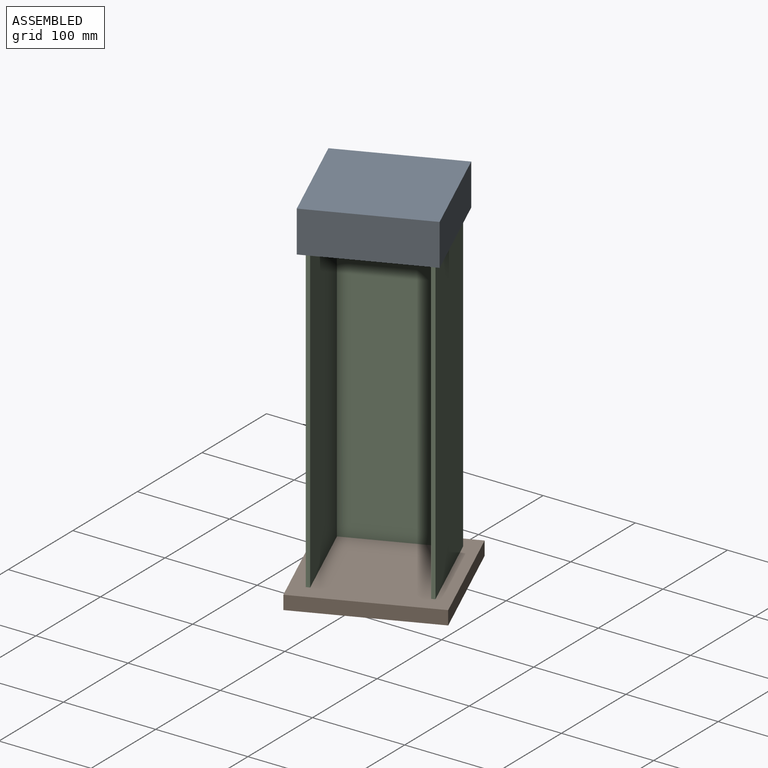
[diagram: assembled view]
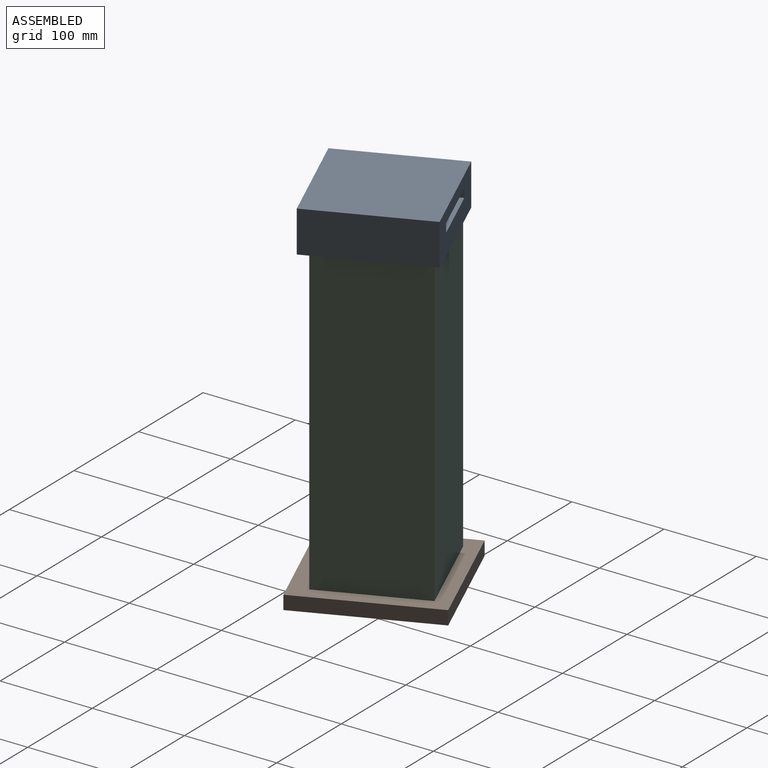
[diagram: assembled view, second angle]
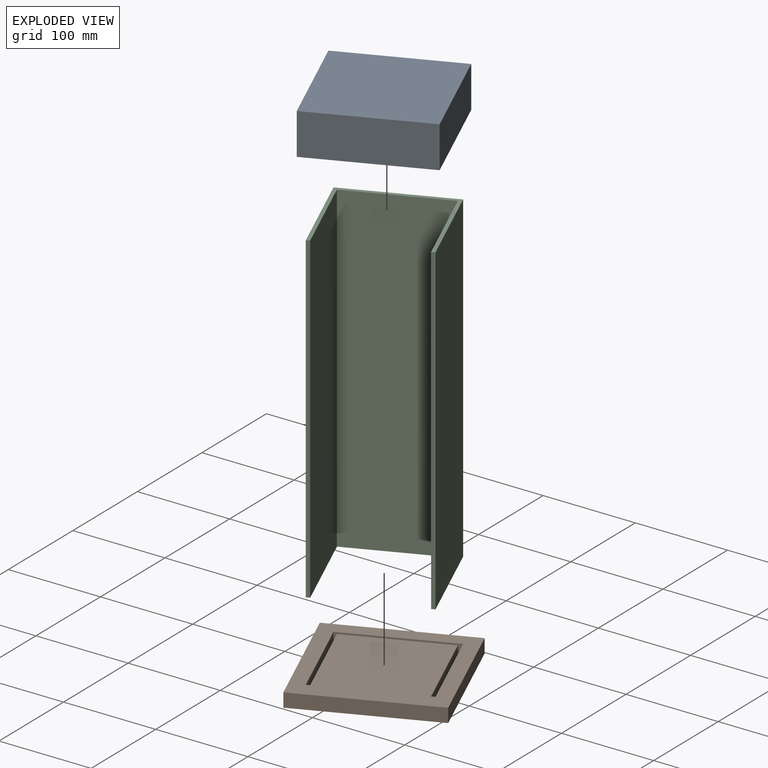
[diagram: exploded view]
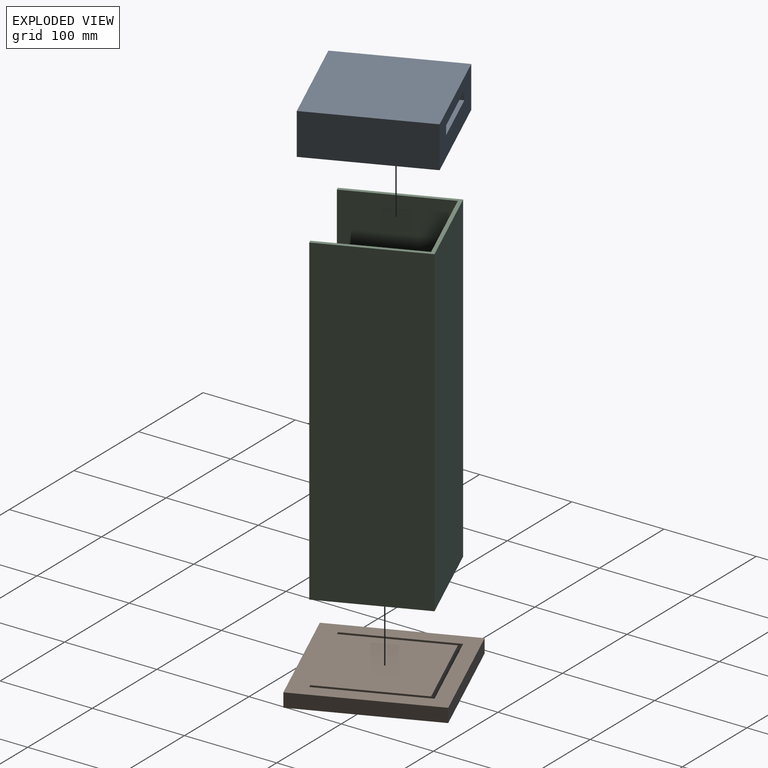
[diagram: exploded view, second angle]
ASSEMBLY  parts=3 mates=2
PART A: 24 faces, bbox 130x130x45 mm
  f0: plane 130x45mm, normal (0,-1,0), area 5130.1mm2, adj f2,f3,f5,f6,f20,f21,f22,f23
  f1: plane 82.2x35mm, normal (0,1,0), area 2157.2mm2, adj f2,f17,f18,f19,f20,f21,f22,f23
  f2: plane 130x130mm, normal (0,0,-1), area 8911.5mm2, adj f0,f1,f3,f4,f5,f7,f8,f9
  f3: plane 130x45mm, normal (1,0,0), area 5850mm2, adj f0,f2,f4,f6
  f4: plane 130x45mm, normal (0,1,0), area 5850mm2, adj f2,f3,f5,f6
  f5: plane 130x45mm, normal (-1,0,0), area 5850mm2, adj f0,f2,f4,f6
  f6: plane 130x130mm, normal (0,0,1), area 16900mm2, adj f0,f3,f4,f5
  f7: plane 114x10mm, normal (1,0,0), area 1140mm2, adj f2,f8,f14,f15
  f8: plane 10x4mm, normal (0,-1,0), area 40mm2, adj f2,f7,f9,f15
  f9: plane 110x10mm, normal (-1,0,0), area 1100mm2, adj f2,f8,f10,f15
  f10: plane 110x10mm, normal (0,-1,0), area 1100mm2, adj f2,f9,f11,f15
  f11: plane 110x10mm, normal (1,0,0), area 1100mm2, adj f2,f10,f12,f15
  f12: plane 10x4mm, normal (0,-1,0), area 40mm2, adj f2,f11,f13,f15
  f13: plane 114x10mm, normal (-1,0,0), area 1140mm2, adj f2,f12,f14,f15
  f14: plane 118x10mm, normal (0,1,0), area 1180mm2, adj f2,f7,f13,f15
  f15: plane 118x114mm, normal (0,0,-1), area 1352mm2, adj f7,f8,f9,f10,f11,f12,f13,f14
  f16: plane 82.2x35mm, normal (0,-1,0), area 2877.1mm2, adj f2,f17,f18,f19
  f17: plane 80.73x35mm, normal (-1,0,0), area 2825.6mm2, adj f1,f2,f16,f19
  f18: plane 80.73x35mm, normal (1,0,0), area 2825.6mm2, adj f1,f2,f16,f19
  f19: plane 82.2x80.73mm, normal (0,0,-1), area 6636.5mm2, adj f1,f16,f17,f18
  f20: plane 75.14x24.63mm, normal (0,0,-1), area 1851mm2, adj f0,f1,f21,f23
  f21: plane 24.63x9.58mm, normal (1,0,0), area 236mm2, adj f0,f1,f20,f22
  f22: plane 75.14x24.63mm, normal (0,0,1), area 1851mm2, adj f0,f1,f21,f23
  f23: plane 24.63x9.58mm, normal (-1,0,0), area 236mm2, adj f0,f1,f20,f22
PART B: 15 faces, bbox 150x150x15 mm
  f0: plane 150x15mm, normal (0,-1,0), area 2250mm2, adj f1,f3,f4,f5
  f1: plane 150x15mm, normal (1,0,0), area 2250mm2, adj f0,f2,f4,f5
  f2: plane 150x15mm, normal (0,1,0), area 2250mm2, adj f1,f3,f4,f5
  f3: plane 150x15mm, normal (-1,0,0), area 2250mm2, adj f0,f2,f4,f5
  f4: plane 150x150mm, normal (0,0,1), area 21148mm2, adj f0,f1,f2,f3,f6,f7,f8,f9
  f5: plane 150x150mm, normal (0,0,-1), area 22500mm2, adj f0,f1,f2,f3
  f6: plane 10x4mm, normal (0,1,0), area 40mm2, adj f4,f7,f13,f14
  f7: plane 110x10mm, normal (-1,0,0), area 1100mm2, adj f4,f6,f8,f14
  f8: plane 110x10mm, normal (0,1,0), area 1100mm2, adj f4,f7,f9,f14
  f9: plane 110x10mm, normal (1,0,0), area 1100mm2, adj f4,f8,f10,f14
  f10: plane 10x4mm, normal (0,1,0), area 40mm2, adj f4,f9,f11,f14
  f11: plane 114x10mm, normal (-1,0,0), area 1140mm2, adj f4,f10,f12,f14
  f12: plane 118x10mm, normal (0,-1,0), area 1180mm2, adj f4,f11,f13,f14
  f13: plane 114x10mm, normal (1,0,0), area 1140mm2, adj f4,f6,f12,f14
  f14: plane 118x114mm, normal (0,0,1), area 1352mm2, adj f6,f7,f8,f9,f10,f11,f12,f13
PART C: 10 faces, bbox 118x114x350 mm
  f0: plane 350x114mm, normal (-1,0,0), area 39900mm2, adj f1,f7,f8,f9
  f1: plane 350x4mm, normal (0,-1,0), area 1400mm2, adj f0,f2,f8,f9
  f2: plane 350x110mm, normal (1,0,0), area 38500mm2, adj f1,f3,f8,f9
  f3: plane 350x110mm, normal (0,-1,0), area 38500mm2, adj f2,f4,f8,f9
  f4: plane 350x110mm, normal (-1,0,0), area 38500mm2, adj f3,f5,f8,f9
  f5: plane 350x4mm, normal (0,-1,0), area 1400mm2, adj f4,f6,f8,f9
  f6: plane 350x114mm, normal (1,0,0), area 39900mm2, adj f5,f7,f8,f9
  f7: plane 350x118mm, normal (0,1,0), area 41300mm2, adj f0,f6,f8,f9
  f8: plane 118x114mm, normal (0,0,1), area 1352mm2, adj f0,f1,f2,f3,f4,f5,f6,f7
  f9: plane 118x114mm, normal (0,0,-1), area 1352mm2, adj f0,f1,f2,f3,f4,f5,f6,f7
PLACE A rot(axis=(0,0,-1),157.5deg) t=(-83.83,87.74,15.21)mm
PLACE B rot(axis=(0,0,1),22.5deg) t=(-83.83,87.74,-329.79)mm
PLACE C rot(axis=(0.2,-0.98,0),180deg) t=(-83.83,87.74,25.21)mm
MATE fastened C.f8 <-> B.f14  axis (0,0,1) through (-117.26,14.33,-324.79)mm
MATE fastened C.f9 <-> A.f15  axis (0,0,1) through (-117.26,14.33,25.21)mm
